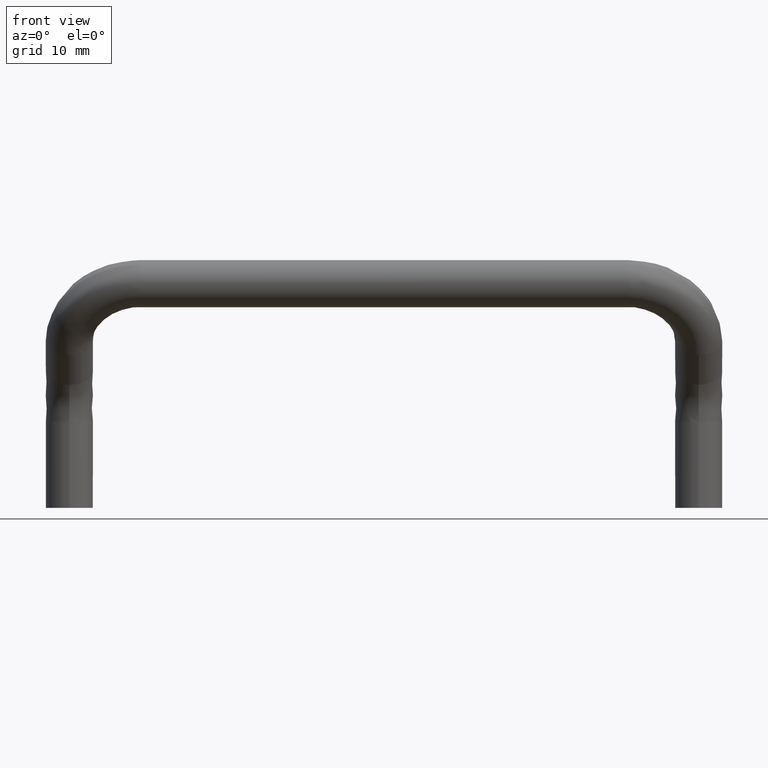
[diagram: clean part render]
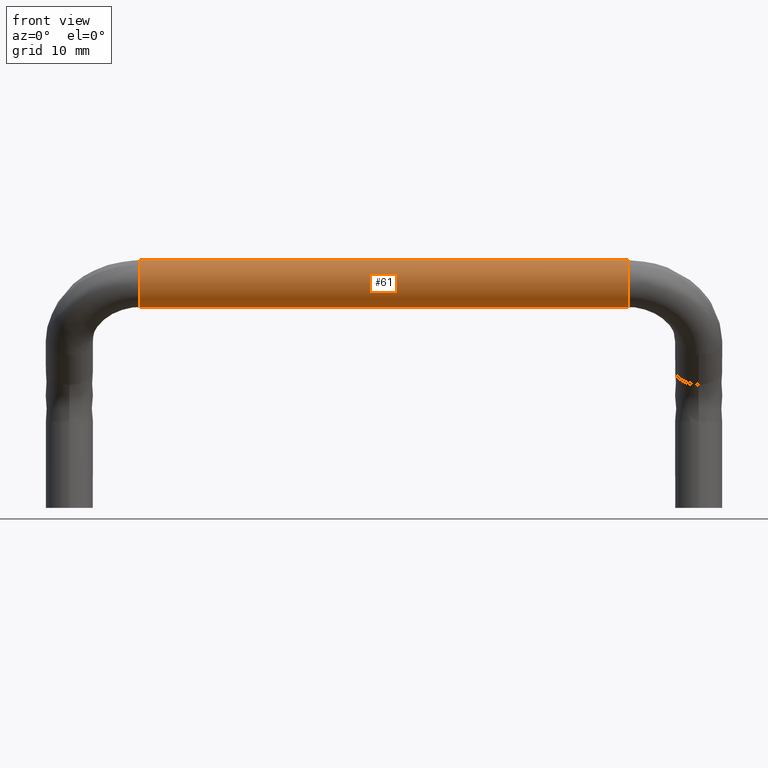
[diagram: same view with one face highlighted and labeled with its STEP entity id]
A machine part, front view. The second image highlights one B-rep face of the part: STEP entity #61.
In plain terms, the highlighted cylindrical surface (edge-blend (fillet) strip) has radius 3 mm, axis along (1, -0, -0).
Its self-contained STEP definition (entity closure, byte-faithful):
#61=ADVANCED_FACE('',(#279),#278,.T.);
#278=CYLINDRICAL_SURFACE('',#586,3.00000000000E+00);
#279=FACE_OUTER_BOUND('',#587,.T.);
#583=CARTESIAN_POINT('',(0.00000000000E+00,5.29090660173E-14,3.00000000000E+00));
#584=DIRECTION('',(1.00000000000E+00,-0.00000000000E+00,-0.00000000000E+00));
#585=DIRECTION('',(0.00000000000E+00,0.00000000000E+00,-1.00000000000E+00));
#586=AXIS2_PLACEMENT_3D('',#583,#584,#585);
#587=EDGE_LOOP('',(#709,#710,#711,#712,#713,#714));
#709=ORIENTED_EDGE('',*,*,#783,.T.);
#710=ORIENTED_EDGE('',*,*,#781,.T.);
#711=ORIENTED_EDGE('',*,*,#791,.T.);
#712=ORIENTED_EDGE('',*,*,#759,.F.);
#713=ORIENTED_EDGE('',*,*,#768,.F.);
#714=ORIENTED_EDGE('',*,*,#792,.F.);
#759=EDGE_CURVE('',#966,#967,#968,.T.);
#768=EDGE_CURVE('',#1021,#966,#1028,.T.);
#781=EDGE_CURVE('',#1117,#1110,#1118,.T.);
#783=EDGE_CURVE('',#1130,#1117,#1131,.T.);
#791=EDGE_CURVE('',#1110,#967,#1180,.T.);
#792=EDGE_CURVE('',#1130,#1021,#1186,.T.);
#966=VERTEX_POINT('',#1325);
#967=VERTEX_POINT('',#1326);
#968=CIRCLE('',#1330,3.00000000000E+00);
#1021=VERTEX_POINT('',#1364);
#1028=CIRCLE('',#1372,3.00000000000E+00);
#1110=VERTEX_POINT('',#1424);
#1117=VERTEX_POINT('',#1429);
#1118=CIRCLE('',#1433,3.00000000000E+00);
#1130=VERTEX_POINT('',#1439);
#1131=CIRCLE('',#1443,3.00000000000E+00);
#1180=(BOUNDED_CURVE() B_SPLINE_CURVE(1,(#1465,#1466),.UNSPECIFIED.,.F.,.F.) B_SPLINE_CURVE_WITH_KNOTS((2,2),(8.33333332085E-02,9.16666666563E-01),.UNSPECIFIED.) CURVE() GEOMETRIC_REPRESENTATION_ITEM() RATIONAL_B_SPLINE_CURVE((1.00000000000E+00,1.00000000000E+00)) REPRESENTATION_ITEM('') );
#1186=(BOUNDED_CURVE() B_SPLINE_CURVE(1,(#1467,#1468),.UNSPECIFIED.,.F.,.F.) B_SPLINE_CURVE_WITH_KNOTS((2,2),(8.33333333333E-02,9.16666666667E-01),.UNSPECIFIED.) CURVE() GEOMETRIC_REPRESENTATION_ITEM() RATIONAL_B_SPLINE_CURVE((7.50000000000E-01,7.50000000000E-01)) REPRESENTATION_ITEM('') );
#1325=CARTESIAN_POINT('',(3.10000000001E+01,-1.74618414932E+00,5.43943454855E+00));
#1326=CARTESIAN_POINT('',(3.10000000001E+01,5.17363929475E-14,4.44089209850E-16));
#1327=CARTESIAN_POINT('',(3.10000000001E+01,5.20417042793E-14,3.00000000000E+00));
#1328=DIRECTION('',(1.00000000000E+00,-2.06806279116E-15,2.88875246003E-15));
#1329=DIRECTION('',(2.88875246003E-15,3.88578058619E-16,-1.00000000000E+00));
#1330=AXIS2_PLACEMENT_3D('',#1327,#1328,#1329);
#1364=CARTESIAN_POINT('',(3.10000000001E+01,1.50800148035E-04,5.99999999621E+00));
#1369=CARTESIAN_POINT('',(3.10000000001E+01,5.20417042793E-14,3.00000000000E+00));
#1370=DIRECTION('',(1.00000000000E+00,-2.06806279116E-15,2.88875246003E-15));
#1371=DIRECTION('',(2.88875246003E-15,3.88578058619E-16,-1.00000000000E+00));
#1372=AXIS2_PLACEMENT_3D('',#1369,#1370,#1371);
#1424=CARTESIAN_POINT('',(-3.10000000001E+01,-1.48404366160E-07,3.64982196328E-15));
#1429=CARTESIAN_POINT('',(-3.10000000001E+01,-1.74632373899E+00,5.43933462211E+00));
#1430=CARTESIAN_POINT('',(-3.10000000001E+01,5.20417042793E-14,3.00000000000E+00));
#1431=DIRECTION('',(1.00000000000E+00,2.01959252071E-15,-2.36847578587E-15));
#1432=DIRECTION('',(3.10145578270E-15,-5.82107912997E-01,8.13111540704E-01));
#1433=AXIS2_PLACEMENT_3D('',#1430,#1431,#1432);
#1439=CARTESIAN_POINT('',(-3.10000000001E+01,1.50948537406E-04,5.99999999620E+00));
#1440=CARTESIAN_POINT('',(-3.10000000001E+01,5.20417042793E-14,3.00000000000E+00));
#1441=DIRECTION('',(1.00000000000E+00,2.01959252071E-15,-2.36847578587E-15));
#1442=DIRECTION('',(3.10145578270E-15,-5.82107912997E-01,8.13111540704E-01));
#1443=AXIS2_PLACEMENT_3D('',#1440,#1441,#1442);
#1465=CARTESIAN_POINT('',(-3.10000000094E+01,5.29090660173E-14,0.00000000000E+00));
#1466=CARTESIAN_POINT('',(3.09999999924E+01,5.29090660173E-14,0.00000000000E+00));
#1467=CARTESIAN_POINT('',(-3.10000000001E+01,5.26985862355E-14,6.00000000000E+00));
#1468=CARTESIAN_POINT('',(3.10000000001E+01,5.26985862355E-14,6.00000000000E+00));